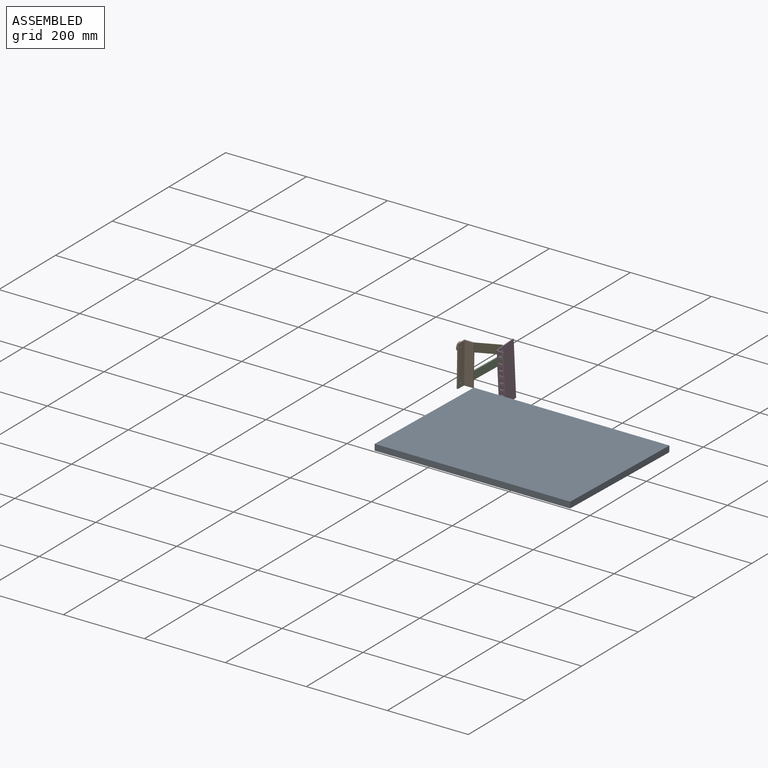
[diagram: assembled view]
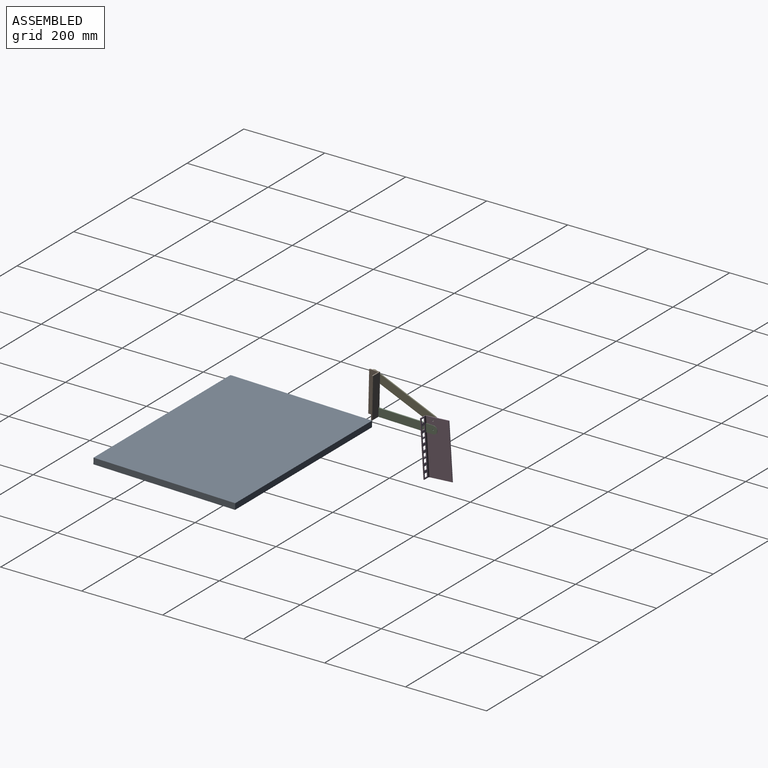
[diagram: assembled view, second angle]
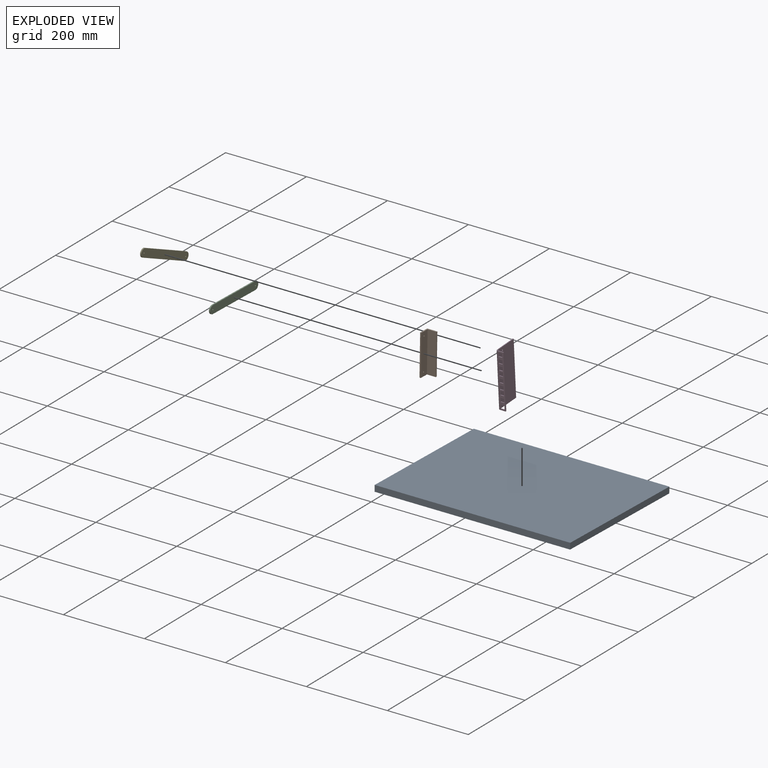
[diagram: exploded view]
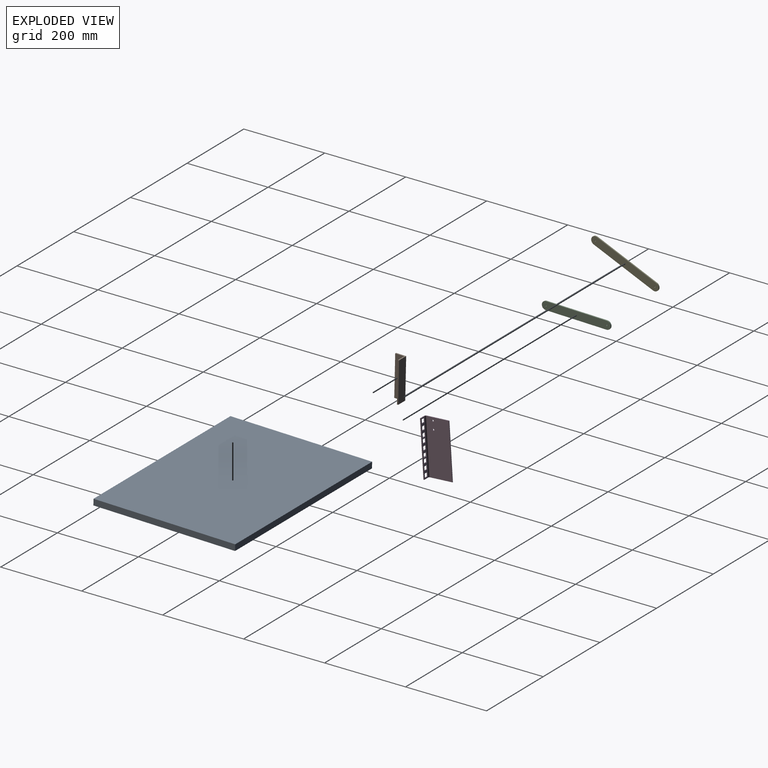
[diagram: exploded view, second angle]
ASSEMBLY  parts=5 mates=5
PART A: 6 faces, bbox 483x350x15 mm
  f0: plane 350x15mm, normal (-1,0,0), area 5250mm2, adj f1,f3,f4,f5
  f1: plane 483x15mm, normal (0,-1,0), area 7245mm2, adj f0,f2,f4,f5
  f2: plane 350x15mm, normal (1,0,0), area 5250mm2, adj f1,f3,f4,f5
  f3: plane 483x15mm, normal (0,1,0), area 7245mm2, adj f0,f2,f4,f5
  f4: plane 483x350mm, normal (0,0,1), area 169050mm2, adj f0,f1,f2,f3
  f5: plane 483x350mm, normal (0,0,-1), area 169050mm2, adj f0,f1,f2,f3
PART B: 10 faces, bbox 25x100x25 mm
  f0: plane 100x25mm, normal (-1,0,0), area 2485.9mm2, adj f1,f5,f6,f7,f8,f9
  f1: plane 100x25mm, normal (0,0,-1), area 2500mm2, adj f0,f2,f6,f7
  f2: plane 100x3mm, normal (1,0,0), area 300mm2, adj f1,f3,f6,f7
  f3: plane 100x22mm, normal (0,0,1), area 2200mm2, adj f2,f4,f6,f7
  f4: plane 100x22mm, normal (1,0,0), area 2185.9mm2, adj f3,f5,f6,f7,f8,f9
  f5: plane 100x3mm, normal (0,0,1), area 300mm2, adj f0,f4,f6,f7
  f6: plane 25x25mm, normal (0,-1,0), area 141mm2, adj f0,f1,f2,f3,f4,f5
  f7: plane 25x25mm, normal (0,1,0), area 141mm2, adj f0,f1,f2,f3,f4,f5
  f8: cylinder r=1.5mm len=3mm, axis (-1,0,0), area 28.3mm2, adj f0,f4
  f9: cylinder r=1.5mm len=3mm, axis (-1,0,0), area 28.3mm2, adj f0,f4
PART C: 8 faces, bbox 3x20x170 mm
  f0: plane 150x3mm, normal (0,1,0), area 450mm2, adj f2,f3,f6,f7
  f1: plane 150x3mm, normal (0,-1,0), area 450mm2, adj f2,f3,f6,f7
  f2: plane 170x20mm, normal (1,0,0), area 3300mm2, adj f0,f1,f4,f5,f6,f7
  f3: plane 170x20mm, normal (-1,0,0), area 3300mm2, adj f0,f1,f4,f5,f6,f7
  f4: cylinder r=1.5mm len=3mm, axis (1,0,0), area 28.3mm2, adj f2,f3
  f5: cylinder r=1.5mm len=3mm, axis (1,0,0), area 28.3mm2, adj f2,f3
  f6: cylinder r=10mm len=20mm, axis (-1,0,0), area 94.2mm2, adj f0,f1,f2,f3
  f7: cylinder r=10mm len=20mm, axis (1,0,0), area 94.2mm2, adj f0,f1,f2,f3
PART D: 52 faces, bbox 18.3x60x135.2 mm
  f0: plane 55.7x2mm, normal (0,0,-1), area 111.4mm2, adj f4,f5,f6,f48
  f1: plane 55.7x2mm, normal (0,0,1), area 111.4mm2, adj f4,f5,f6,f49
  f2: cylinder r=2mm len=4mm, axis (1,0,0), area 25.1mm2, adj f5,f6
  f3: cylinder r=2mm len=4mm, axis (1,0,0), area 25.1mm2, adj f5,f6
  f4: plane 135.2x2mm, normal (0,1,0), area 270.4mm2, adj f0,f1,f5,f6
  f5: plane 135.2x55.7mm, normal (-1,0,0), area 7505.5mm2, adj f0,f1,f2,f3,f4,f50
  f6: plane 135.2x55.7mm, normal (1,0,0), area 7505.5mm2, adj f0,f1,f2,f3,f4,f51
  f7: plane 9.4x2mm, normal (0,0,1), area 18.8mm2, adj f8,f45,f46,f47
  f8: plane 9.4x2mm, normal (1,0,0), area 18.8mm2, adj f7,f9,f46,f47
  f9: plane 9.4x2mm, normal (0,0,-1), area 18.8mm2, adj f8,f45,f46,f47
  f10: plane 9.4x2mm, normal (0,0,-1), area 18.8mm2, adj f11,f44,f46,f47
  f11: plane 9.4x2mm, normal (-1,0,0), area 18.8mm2, adj f10,f12,f46,f47
  f12: plane 9.4x2mm, normal (0,0,1), area 18.8mm2, adj f11,f44,f46,f47
  f13: plane 9.4x2mm, normal (0,0,-1), area 18.8mm2, adj f14,f43,f46,f47
  f14: plane 9.4x2mm, normal (-1,0,0), area 18.8mm2, adj f13,f15,f46,f47
  f15: plane 9.4x2mm, normal (0,0,1), area 18.8mm2, adj f14,f43,f46,f47
  f16: plane 9.4x2mm, normal (0,0,-1), area 18.8mm2, adj f17,f42,f46,f47
  f17: plane 9.4x2mm, normal (-1,0,0), area 18.8mm2, adj f16,f18,f46,f47
  f18: plane 9.4x2mm, normal (0,0,1), area 18.8mm2, adj f17,f42,f46,f47
  f19: plane 9.4x2mm, normal (0,0,1), area 18.8mm2, adj f20,f41,f46,f47
  f20: plane 9.4x2mm, normal (1,0,0), area 18.8mm2, adj f19,f21,f46,f47
  f21: plane 9.4x2mm, normal (0,0,-1), area 18.8mm2, adj f20,f41,f46,f47
  f22: plane 9.4x2mm, normal (0,0,-1), area 18.8mm2, adj f23,f40,f46,f47
  f23: plane 9.4x2mm, normal (-1,0,0), area 18.8mm2, adj f22,f24,f46,f47
  f24: plane 9.4x2mm, normal (0,0,1), area 18.8mm2, adj f23,f40,f46,f47
  f25: plane 9.4x2mm, normal (0,0,-1), area 18.8mm2, adj f26,f39,f46,f47
  f26: plane 9.4x2mm, normal (-1,0,0), area 18.8mm2, adj f25,f27,f46,f47
  f27: plane 9.4x2mm, normal (0,0,1), area 18.8mm2, adj f26,f39,f46,f47
  f28: plane 9.4x2mm, normal (0,0,-1), area 18.8mm2, adj f29,f38,f46,f47
  f29: plane 9.4x2mm, normal (-1,0,0), area 18.8mm2, adj f28,f30,f46,f47
  f30: plane 9.4x2mm, normal (0,0,1), area 18.8mm2, adj f29,f38,f46,f47
  f31: plane 9.4x2mm, normal (0,0,-1), area 18.8mm2, adj f32,f37,f46,f47
  f32: plane 9.4x2mm, normal (-1,0,0), area 18.8mm2, adj f31,f33,f46,f47
  f33: plane 9.4x2mm, normal (0,0,1), area 18.8mm2, adj f32,f37,f46,f47
  f34: plane 135.2x2mm, normal (1,0,0), area 270.4mm2, adj f35,f36,f46,f47
  f35: plane 14x2mm, normal (0,0,1), area 28mm2, adj f34,f46,f47,f49
  f36: plane 14x2mm, normal (0,0,-1), area 28mm2, adj f34,f46,f47,f48
  f37: plane 9.4x2mm, normal (1,0,0), area 18.8mm2, adj f31,f33,f46,f47
  f38: plane 9.4x2mm, normal (1,0,0), area 18.8mm2, adj f28,f30,f46,f47
  f39: plane 9.4x2mm, normal (1,0,0), area 18.8mm2, adj f25,f27,f46,f47
  f40: plane 9.4x2mm, normal (1,0,0), area 18.8mm2, adj f22,f24,f46,f47
  f41: plane 9.4x2mm, normal (-1,0,0), area 18.8mm2, adj f19,f21,f46,f47
  f42: plane 9.4x2mm, normal (1,0,0), area 18.8mm2, adj f16,f18,f46,f47
  f43: plane 9.4x2mm, normal (1,0,0), area 18.8mm2, adj f13,f15,f46,f47
  f44: plane 9.4x2mm, normal (1,0,0), area 18.8mm2, adj f10,f12,f46,f47
  f45: plane 9.4x2mm, normal (-1,0,0), area 18.8mm2, adj f7,f9,f46,f47
  f46: plane 135.2x14mm, normal (0,-1,0), area 1097.6mm2, adj f7,f8,f9,f10,f11,f12,f13,f14
  f47: plane 135.2x14mm, normal (0,1,0), area 1097.6mm2, adj f7,f8,f9,f10,f11,f12,f13,f14
  f48: plane 4.3x4.3mm, normal (0,0,-1), area 10.4mm2, adj f0,f36,f50,f51
  f49: plane 4.3x4.3mm, normal (0,0,1), area 10.4mm2, adj f1,f35,f50,f51
  f50: cylinder r=4.3mm len=135.2mm, axis (0,0,-1), area 913.2mm2, adj f5,f46,f48,f49
  f51: cylinder r=2.3mm len=135.2mm, axis (0,0,-1), area 488.5mm2, adj f6,f47,f48,f49
PART E: 8 faces, bbox 3x20x180 mm
  f0: plane 160x3mm, normal (0,1,0), area 480mm2, adj f2,f3,f6,f7
  f1: plane 160x3mm, normal (0,-1,0), area 480mm2, adj f2,f3,f6,f7
  f2: plane 180x20mm, normal (1,0,0), area 3500mm2, adj f0,f1,f4,f5,f6,f7
  f3: plane 180x20mm, normal (-1,0,0), area 3500mm2, adj f0,f1,f4,f5,f6,f7
  f4: cylinder r=1.5mm len=3mm, axis (1,0,0), area 28.3mm2, adj f2,f3
  f5: cylinder r=1.5mm len=3mm, axis (1,0,0), area 28.3mm2, adj f2,f3
  f6: cylinder r=10mm len=20mm, axis (-1,0,0), area 94.2mm2, adj f0,f1,f2,f3
  f7: cylinder r=10mm len=20mm, axis (1,0,0), area 94.2mm2, adj f0,f1,f2,f3
PLACE A rot(axis=(-1,0,0),1.3deg) t=(243.74,-16.33,-122.56)mm fixed
PLACE B rot(axis=(1,0,0),88.7deg) t=(-10.26,148.81,-11.38)mm
PLACE C rot(axis=(0,0.72,0.7),180deg) t=(-19.76,219.19,-103.09)mm
PLACE D rot(axis=(1,0,0),3.7deg) t=(-22.76,307.7,-144.1)mm
PLACE E rot(axis=(-1,0,0),113.4deg) t=(-25.76,219.48,-53.12)mm
MATE revolute C.f5 <-> B.f9  axis (-1,0,0) through (-22.76,144.21,-101.3)mm
MATE fastened B.f6 <-> A.f4  axis (0,0.02,1) through (2.24,158.97,-111.65)mm
MATE revolute E.f4 <-> D.f3  axis (1,0,0) through (-22.76,292.89,-84.93)mm
MATE revolute C.f4 <-> D.f2  axis (-1,0,0) through (-22.76,294.17,-104.89)mm
MATE revolute E.f5 <-> B.f8  axis (1,0,0) through (-22.76,146.08,-21.32)mm
